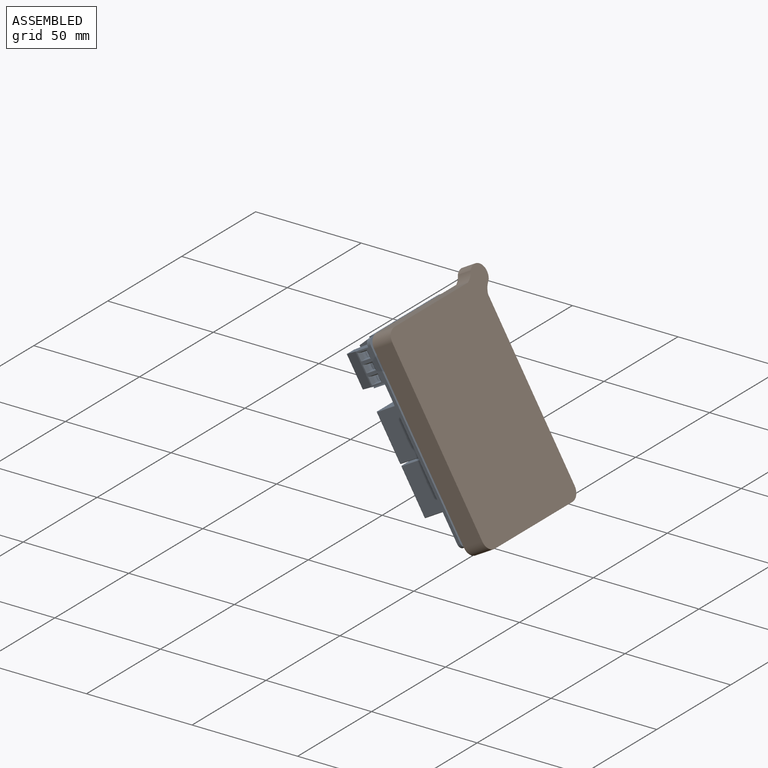
[diagram: assembled view]
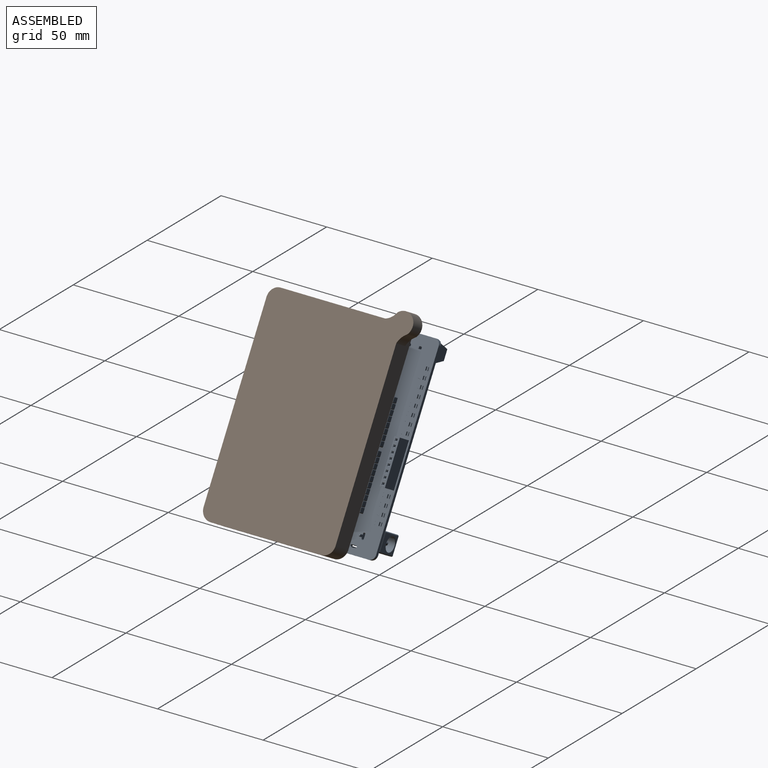
[diagram: assembled view, second angle]
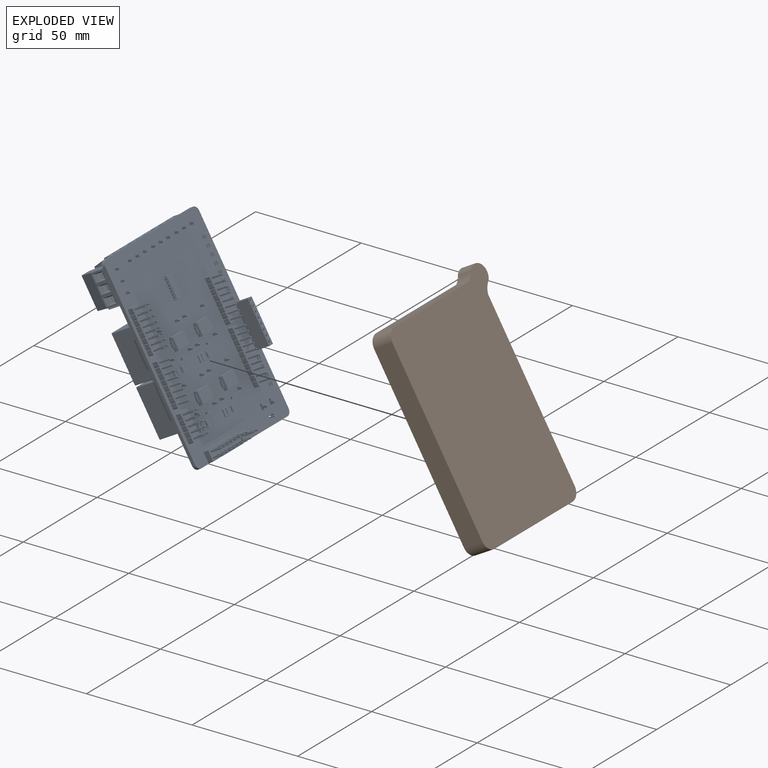
[diagram: exploded view]
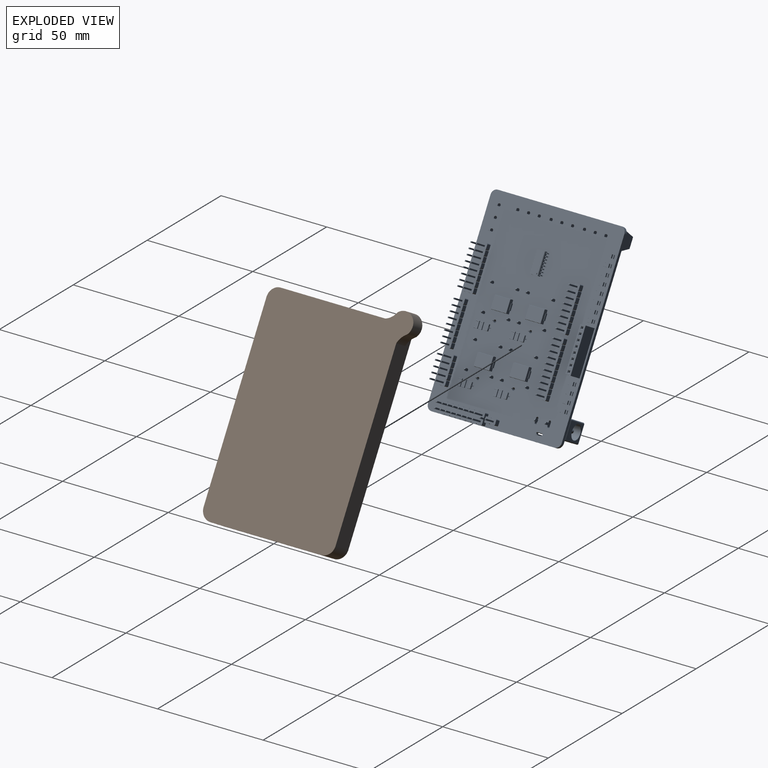
[diagram: exploded view, second angle]
FCSTD DOCUMENT  (FreeCAD 0.20R29410 (Git))
Label: case
License: All rights reserved
LicenseURL: http://en.wikipedia.org/wiki/All_rights_reserved
objects: App::Link×45, Part::Feature×21, Sketcher::SketchObject×12, App::Part×7, PartDesign::ShapeBinder×7, PartDesign::Pad×6, PartDesign::Pocket×5, PartDesign::Fillet×3, PartDesign::Chamfer×2, PartDesign::CoordinateSystem×1, Spreadsheet::Sheet×1, PartDesign::Body×1
note: 74 computed .brp shape members not serialized (recipe doc carries the construction recipe); baked Part::Feature solids carry a one-line shape summary decoded from their .brp
EXTERNAL_REF file=kit.FCStd obj=Body

FEATURE [PartDesign::CoordinateSystem] Local_CS_28d6
  AttacherType = Attacher::AttachEngine3D
  MapMode = 2
  Support = -> [X_Axis001]
FEATURE [Part::Feature] Pcb_28d6
  shape: bbox 89.73 x 63.38 x 1.6 mm, 143 faces (baked)
FEATURE [Sketcher::SketchObject] PCB_Sketch_28d6
  FullyConstrained = false
  sketch-geometry (13):
    g0: LineSegment StartX=103.825 StartY=-70.15 StartZ=0 EndX=103.825 EndY=-66.375 EndZ=0
    g1: LineSegment StartX=190.946 StartY=-63.7749 StartZ=0 EndX=106.45 EndY=-63.7751 EndZ=0
    g2: LineSegment StartX=103.83 StartY=-75.7499 StartZ=0 EndX=103.823 EndY=-124.52 EndZ=0
    g3: LineSegment StartX=106.422 StartY=-127.145 StartZ=0 EndX=190.92 EndY=-127.152 EndZ=0
    g4: LineSegment StartX=193.545 StartY=-66.4001 StartZ=0 EndX=193.55 EndY=-75.775 EndZ=0
    g5: LineSegment StartX=103.83 StartY=-75.7499 StartZ=0 EndX=103.825 EndY=-73.15 EndZ=0
    g6: LineSegment StartX=193.55 StartY=-75.9 StartZ=0 EndX=193.55 EndY=-75.775 EndZ=0
    g7: LineSegment StartX=193.545 StartY=-124.553 StartZ=0 EndX=193.55 EndY=-75.9 EndZ=0
    g8: LineSegment StartX=103.825 StartY=-73.15 StartZ=0 EndX=103.825 EndY=-70.15 EndZ=0
    g9: ArcOfCircle CenterX=106.422 CenterY=-124.545 CenterZ=0 NormalX=0 NormalY=0 NormalZ=-1 AngleXU=-1.5708 Radius=2.6 StartAngle=0 EndAngle=1.5805
    g10: ArcOfCircle CenterX=190.945 CenterY=-124.553 CenterZ=0 NormalX=0 NormalY=0 NormalZ=-1 AngleXU=-3.14159 Radius=2.6 StartAngle=0 EndAngle=1.5805
    g11: ArcOfCircle CenterX=190.946 CenterY=-66.3749 CenterZ=0 NormalX=0 NormalY=0 NormalZ=-1 AngleXU=1.5708 Radius=2.60001 StartAngle=0 EndAngle=1.5805
    g12: ArcOfCircle CenterX=106.425 CenterY=-66.3751 CenterZ=0 NormalX=0 NormalY=0 NormalZ=-1 AngleXU=2.33636e-05 Radius=2.60006 StartAngle=0 EndAngle=1.58046
  constraints (13):
    c: Coincident(g2,g9)
    c: Coincident(g2,g5)
    c: Coincident(g5,g8)
    c: Coincident(g0,g8)
    c: Coincident(g0,g12)
    c: Coincident(g3,g9)
    c: Coincident(g1,g12)
    c: Coincident(g3,g10)
    c: Coincident(g1,g11)
    c: Coincident(g7,g10)
    c: Coincident(g6,g7)
    c: Coincident(g4,g6)
    c: Coincident(g4,g11)
FEATURE [App::Part] Board_Geoms_28d6
  Group = -> [Pcb_28d6,PCB_Sketch_28d6]
  Origin = -> Origin
FEATURE [Part::Feature] Shape  label="J12_PinHeader_1x08_P254mm_Vertical_d783d4724b8c"
  Placement = pos=(130.45,-124.275,-1.7) rot=(0.707107,-0.707107,0;3.14159rad)
  shape: bbox 20.32 x 2.54 x 11.54 mm, 196 faces (baked)
FEATURE [Part::Feature] Shape001  label="K1_Omron Single_caf82bef3e86[2]"
  Placement = pos=(118.575,-116.9,0) rot=(0.57735,-0.57735,-0.57735;2.0944rad)
  shape: bbox 22.7 x 16.9 x 22.5 mm, 178 faces (baked)
FEATURE [Part::Feature] Part__Feature  label="DC Power Jack 5.5mm x 2.1mm"
  shape: bbox 8.98 x 10.66 x 3.434 mm, 26 faces (baked)
FEATURE [Part::Feature] Part__Feature001  label="DC Power Jack 5.5mm x 2.1mm001"
  shape: bbox 7.413 x 9.986 x 5.78 mm, 45 faces (baked)
FEATURE [Part::Feature] Part__Feature002  label="DC Power Jack 5.5mm x 2.1mm002"
  shape: bbox 5.91 x 12.13 x 1.49 mm, 32 faces (baked)
FEATURE [Part::Feature] Part__Feature003  label="DC Power Jack 5.5mm x 2.1mm003"
  shape: bbox 2.706 x 2.706 x 13.23 mm, 24 faces (baked)
FEATURE [Part::Feature] Part__Feature004  label="DC Power Jack 5.5mm x 2.1mm004"
  shape: bbox 8.98 x 10.22 x 9.009 mm, 23 faces (baked)
FEATURE [Part::Feature] Part__Feature005  label="DC Power Jack 5.5mm x 2.1mm005"
  shape: bbox 7.78 x 8.517 x 11.48 mm, 51 faces (baked)
FEATURE [App::Part] DC_Power_Jack_5_5mm_x_2_1mm  label="J1_DC Power Jack 5.5mm x 2.1mm006_e5b2adcd096e[2]"
  Group = -> [Part__Feature,Part__Feature001,Part__Feature002,Part__Feature003,Part__Feature004,Part__Feature005]
  Origin = -> Origin008
  Placement = pos=(111.908,-67.025,6.2) rot=(0,0.707107,0.707107;3.14159rad)
FEATURE [Part::Feature] Shape002  label="R11_R_1206_3216Metric_ec07428b837d"
  Placement = pos=(162.425,-66.8,0) rot=(0,0,1;1.5708rad)
  shape: bbox 1.6 x 3.2 x 0.55 mm, 26 faces (baked)
FEATURE [Part::Feature] Shape003  label="J7_TerminalBlock_Phoenix_MKDS_15_3_508_1x03_P508mm_Horizontal_12463923074c"
  Placement = pos=(188.28,-113.235,0) rot=(0,0,1;1.5708rad)
  shape: bbox 9.8 x 15.98 x 17.3 mm, 125 faces (baked)
FEATURE [Part::Feature] Shape004  label="J10_PinHeader_1x10_P254mm_Vertical_23bf743a7fd1"
  Placement = pos=(121.475,-76.025,-1.7) rot=(0.707107,-0.707107,0;3.14159rad)
  shape: bbox 25.4 x 2.54 x 11.54 mm, 244 faces (baked)
FEATURE [Part::Feature] Shape005  label="J13_PinHeader_2x08_P254mm_Vertical_a01e1bbe7a61"
  Placement = pos=(153.325,-121.8,-1.5) rot=(0.707107,-0.707107,0;3.14159rad)
  shape: bbox 20.32 x 5.08 x 11.54 mm, 340 faces (baked)
FEATURE [App::Link] R11_R_1206_3216Metric_ec07428b837d_ln_  label="R17_R_1206_3216Metric_3580d38782c3"
  LinkPlacement = pos=(169.95,-66.775,0) rot=(0,0,1;1.5708rad)
  LinkedObject = -> Shape002
  Placement = pos=(169.95,-66.775,0) rot=(0,0,1;1.5708rad)
FEATURE [App::Link] R11_R_1206_3216Metric_ec07428b837d_ln_001  label="R2_R_1206_3216Metric_eec3e6a189bc"
  LinkPlacement = pos=(122.025,-66.8,0) rot=(0,0,1;1.5708rad)
  LinkedObject = -> Shape002
  Placement = pos=(122.025,-66.8,0) rot=(0,0,1;1.5708rad)
FEATURE [App::Link] K1_Omron_Single_caf82bef3e86_2__ln_  label="K2_Omron Single_f9110d43add2[2]"
  LinkPlacement = pos=(141.775,-100.025,0) rot=(0.57735,-0.57735,-0.57735;2.0944rad)
  LinkedObject = -> Shape001
  Placement = pos=(141.775,-100.025,0) rot=(0.57735,-0.57735,-0.57735;2.0944rad)
FEATURE [App::Link] J13_PinHeader_2x08_P254mm_Vertical_a01e1bbe7a61_ln_  label="J6_PinHeader_2x08_P254mm_Vertical_eae046cc1161"
  LinkPlacement = pos=(105.35,-118.375,-1.7) rot=(1,0,0;3.14159rad)
  LinkedObject = -> Shape005
  Placement = pos=(105.35,-118.375,-1.7) rot=(1,0,0;3.14159rad)
FEATURE [App::Link] R11_R_1206_3216Metric_ec07428b837d_ln_002  label="R1_R_1206_3216Metric_94f45a4b6795"
  LinkPlacement = pos=(118.3,-66.825,0) rot=(0,0,1;1.5708rad)
  LinkedObject = -> Shape002
  Placement = pos=(118.3,-66.825,0) rot=(0,0,1;1.5708rad)
FEATURE [App::Link] R11_R_1206_3216Metric_ec07428b837d_ln_003  label="R19_R_1206_3216Metric_bf50ff09cd04"
  LinkPlacement = pos=(177.5,-66.65,0) rot=(0,0,1;1.5708rad)
  LinkedObject = -> Shape002
  Placement = pos=(177.5,-66.65,0) rot=(0,0,1;1.5708rad)
FEATURE [App::Link] K1_Omron_Single_caf82bef3e86_2__ln_001  label="K3_Omron Single_8cf321bb68ed[2]"
  LinkPlacement = pos=(141.773,-116.975,0) rot=(0.57735,-0.57735,-0.57735;2.0944rad)
  LinkedObject = -> Shape001
  Placement = pos=(141.773,-116.975,0) rot=(0.57735,-0.57735,-0.57735;2.0944rad)
FEATURE [App::Link] J12_PinHeader_1x08_P254mm_Vertical_d783d4724b8c_ln_  label="J9_PinHeader_1x08_P254mm_Vertical_97c036a740dd"
  LinkPlacement = pos=(148.3,-76.025,-1.7) rot=(0.707107,-0.707107,0;3.14159rad)
  LinkedObject = -> Shape
  Placement = pos=(148.3,-76.025,-1.7) rot=(0.707107,-0.707107,0;3.14159rad)
FEATURE [App::Link] R11_R_1206_3216Metric_ec07428b837d_ln_004  label="R20_R_1206_3216Metric_25bd57ac141b"
  LinkPlacement = pos=(181.275,-66.65,0) rot=(0,0,1;1.5708rad)
  LinkedObject = -> Shape002
  Placement = pos=(181.275,-66.65,0) rot=(0,0,1;1.5708rad)
FEATURE [App::Link] R11_R_1206_3216Metric_ec07428b837d_ln_005  label="R9_R_1206_3216Metric_c1497c8de97c"
  LinkPlacement = pos=(154.925,-66.825,0) rot=(0,0,1;1.5708rad)
  LinkedObject = -> Shape002
  Placement = pos=(154.925,-66.825,0) rot=(0,0,1;1.5708rad)
FEATURE [App::Link] J7_TerminalBlock_Phoenix_MKDS_15_3_508_1x03_P508mm_Horizontal_12463923074c_ln_  label="J3_TerminalBlock_Phoenix_MKDS_15_3_508_1x03_P508mm_Horizontal_1d837a123eba"
  LinkPlacement = pos=(177.84,-122.03,0) rot=(0,0,1;0rad)
  LinkedObject = -> Shape003
  Placement = pos=(177.84,-122.03,0) rot=(0,0,1;0rad)
FEATURE [App::Link] J7_TerminalBlock_Phoenix_MKDS_15_3_508_1x03_P508mm_Horizontal_12463923074c_ln_001  label="J8_TerminalBlock_Phoenix_MKDS_15_3_508_1x03_P508mm_Horizontal_bc24bf0b74e8"
  LinkPlacement = pos=(188.3,-81.675,0) rot=(0,0,1;1.5708rad)
  LinkedObject = -> Shape003
  Placement = pos=(188.3,-81.675,0) rot=(0,0,1;1.5708rad)
FEATURE [App::Link] R11_R_1206_3216Metric_ec07428b837d_ln_006  label="R10_R_1206_3216Metric_6ad1f30e7b3c"
  LinkPlacement = pos=(158.675,-66.8,0) rot=(0,0,1;1.5708rad)
  LinkedObject = -> Shape002
  Placement = pos=(158.675,-66.8,0) rot=(0,0,1;1.5708rad)
FEATURE [App::Link] R11_R_1206_3216Metric_ec07428b837d_ln_007  label="R7_R_1206_3216Metric_1bdf9946985d"
  LinkPlacement = pos=(125.775,-66.825,0) rot=(0,0,1;1.5708rad)
  LinkedObject = -> Shape002
  Placement = pos=(125.775,-66.825,0) rot=(0,0,1;1.5708rad)
FEATURE [Part::Feature] Shape006  label="J2_PinHeader_1x02_P254mm_Vertical_95efb781d8af"
  Placement = pos=(106.71,-94.9,-1.7) rot=(0,1,0;3.14159rad)
  shape: bbox 2.54 x 5.08 x 11.54 mm, 52 faces (baked)
FEATURE [App::Link] J7_TerminalBlock_Phoenix_MKDS_15_3_508_1x03_P508mm_Horizontal_12463923074c_ln_002  label="J4_TerminalBlock_Phoenix_MKDS_15_3_508_1x03_P508mm_Horizontal_16a0b4103535"
  LinkPlacement = pos=(188.3,-97.475,0) rot=(0,0,1;1.5708rad)
  LinkedObject = -> Shape003
  Placement = pos=(188.3,-97.475,0) rot=(0,0,1;1.5708rad)
FEATURE [App::Link] R11_R_1206_3216Metric_ec07428b837d_ln_008  label="R8_R_1206_3216Metric_538cd9ca3b60"
  LinkPlacement = pos=(129.525,-66.825,0) rot=(0,0,1;1.5708rad)
  LinkedObject = -> Shape002
  Placement = pos=(129.525,-66.825,0) rot=(0,0,1;1.5708rad)
FEATURE [Part::Feature] Shape007  label="J5_PinHeader_2x05_P254mm_Vertical_f005d03266e4"
  Placement = pos=(115.775,-121.75,-1.7) rot=(0.707107,-0.707107,0;3.14159rad)
  shape: bbox 12.7 x 5.08 x 11.54 mm, 214 faces (baked)
FEATURE [App::Link] R11_R_1206_3216Metric_ec07428b837d_ln_009  label="R14_R_1206_3216Metric_2640cb732bdd"
  LinkPlacement = pos=(166.175,-66.8,0) rot=(0,0,1;1.5708rad)
  LinkedObject = -> Shape002
  Placement = pos=(166.175,-66.8,0) rot=(0,0,1;1.5708rad)
FEATURE [App::Link] R11_R_1206_3216Metric_ec07428b837d_ln_010  label="R18_R_1206_3216Metric_64d4fbef29ad"
  LinkPlacement = pos=(173.725,-66.725,0) rot=(0,0,1;1.5708rad)
  LinkedObject = -> Shape002
  Placement = pos=(173.725,-66.725,0) rot=(0,0,1;1.5708rad)
FEATURE [App::Link] K1_Omron_Single_caf82bef3e86_2__ln_002  label="K4_Omron Single_2e16ef0eddcc[2]"
  LinkPlacement = pos=(118.573,-100,0) rot=(0.57735,-0.57735,-0.57735;2.0944rad)
  LinkedObject = -> Shape001
  Placement = pos=(118.573,-100,0) rot=(0.57735,-0.57735,-0.57735;2.0944rad)
FEATURE [App::Part] Top_28d6
  Group = -> [Shape,Shape001,DC_Power_Jack_5_5mm_x_2_1mm,Shape002,Shape003,Shape004,Shape005,R11_R_1206_3216Metric_ec07428b837d_ln_,R11_R_1206_3216Metric_ec07428b837d_ln_001,K1_Omron_Single_caf82bef3e86_2__ln_,J13_PinHeader_2x08_P254mm_Vertical_a01e1bbe7a61_ln_,R11_R_1206_3216Metric_ec07428b837d_ln_002,R11_R_1206_3216Metric_ec07428b837d_ln_003,K1_Omron_Single_caf82bef3e86_2__ln_001,+14 more]
  Origin = -> Origin003
FEATURE [Part::Feature] Shape008  label="D4_D_SMC_c487d827e4b3"
  Placement = pos=(151.3,-90.875,-1.6) rot=(0.707107,-0.707107,0;3.14159rad)
  shape: bbox 5.9 x 8 x 2.31 mm, 41 faces (baked)
FEATURE [Part::Feature] Shape009  label="D1_LED_1206_3216Metric_d844c38b822c"
  Placement = pos=(118.3,-66.8125,-1.6) rot=(0.707107,-0.707107,0;3.14159rad)
  shape: bbox 1.6 x 3.2 x 1.1 mm, 50 faces (baked)
FEATURE [Part::Feature] Shape010  label="Q1_TSOT_23_ddb4d86defde"
  Placement = pos=(117.75,-110.94,-1.6) rot=(0.707107,0.707107,0;3.14159rad)
  shape: bbox 2.9 x 2.8 x 0.95 mm, 79 faces (baked)
FEATURE [App::Link] R11_R_1206_3216Metric_ec07428b837d_ln_011  label="R13_R_1206_3216Metric_a5290e0958aa"
  LinkPlacement = pos=(117.825,-98.9511,-1.6) rot=(0,1,0;3.14159rad)
  LinkedObject = -> Shape002
  Placement = pos=(117.825,-98.9511,-1.6) rot=(0,1,0;3.14159rad)
FEATURE [Part::Feature] Shape011  label="J11_PinSocket_1x08_P254mm_Vertical_2b9474b2f036"
  Placement = pos=(133.575,-65.725,-1.6) rot=(0.707107,-0.707107,0;3.14159rad)
  shape: bbox 20.32 x 2.54 x 10.1 mm, 258 faces (baked)
FEATURE [App::Link] D1_LED_1206_3216Metric_d844c38b822c_ln_  label="D7_LED_1206_3216Metric_13a76bbdf113"
  LinkPlacement = pos=(154.925,-66.8,-1.6) rot=(0.707107,-0.707107,0;3.14159rad)
  LinkedObject = -> Shape009
  Placement = pos=(154.925,-66.8,-1.6) rot=(0.707107,-0.707107,0;3.14159rad)
FEATURE [App::Link] R11_R_1206_3216Metric_ec07428b837d_ln_012  label="R12_R_1206_3216Metric_bc84a44e62c0"
  LinkPlacement = pos=(141.188,-115.978,-1.6) rot=(0,1,0;3.14159rad)
  LinkedObject = -> Shape002
  Placement = pos=(141.188,-115.978,-1.6) rot=(0,1,0;3.14159rad)
FEATURE [App::Link] Q1_TSOT_23_ddb4d86defde_ln_  label="Q2_TSOT_23_6eccafcf6a0f"
  LinkPlacement = pos=(140.95,-94.015,-1.6) rot=(0.707107,0.707107,0;3.14159rad)
  LinkedObject = -> Shape010
  Placement = pos=(140.95,-94.015,-1.6) rot=(0.707107,0.707107,0;3.14159rad)
FEATURE [Part::Feature] Part__Feature006  label="User_Library-so16-1"
  shape: bbox 9.29 x 1.038 x 6.137 mm, 206 faces (baked)
FEATURE [Part::Feature] Part__Feature007  label="User_Library-so16-002"
  shape: bbox 9.97 x 1.6 x 4 mm, 12 faces (baked)
FEATURE [App::Part] User_Library_so16_1  label="U1_User_Library-so16-003_2794b44e3a7c[2]"
  Group = -> [Part__Feature006,Part__Feature007]
  Origin = -> Origin009
  Placement = pos=(170.8,-96.775,-2.4) rot=(-1,0,0;1.5708rad)
FEATURE [App::Link] D1_LED_1206_3216Metric_d844c38b822c_ln_001  label="D6_LED_1206_3216Metric_14b0f569b74b"
  LinkPlacement = pos=(129.525,-66.825,-1.6) rot=(0.707107,-0.707107,0;3.14159rad)
  LinkedObject = -> Shape009
  Placement = pos=(129.525,-66.825,-1.6) rot=(0.707107,-0.707107,0;3.14159rad)
FEATURE [App::Link] D1_LED_1206_3216Metric_d844c38b822c_ln_002  label="D2_LED_1206_3216Metric_856cc0d17812"
  LinkPlacement = pos=(122.025,-66.8,-1.6) rot=(0.707107,-0.707107,0;3.14159rad)
  LinkedObject = -> Shape009
  Placement = pos=(122.025,-66.8,-1.6) rot=(0.707107,-0.707107,0;3.14159rad)
FEATURE [App::Link] D1_LED_1206_3216Metric_d844c38b822c_ln_003  label="D9_LED_1206_3216Metric_afd7fb6486c7"
  LinkPlacement = pos=(162.425,-66.8125,-1.6) rot=(0.707107,-0.707107,0;3.14159rad)
  LinkedObject = -> Shape009
  Placement = pos=(162.425,-66.8125,-1.6) rot=(0.707107,-0.707107,0;3.14159rad)
FEATURE [App::Link] D1_LED_1206_3216Metric_d844c38b822c_ln_004  label="D16_LED_1206_3216Metric_99e1aaf2db81"
  LinkPlacement = pos=(181.275,-66.725,-1.6) rot=(0.707107,-0.707107,0;3.14159rad)
  LinkedObject = -> Shape009
  Placement = pos=(181.275,-66.725,-1.6) rot=(0.707107,-0.707107,0;3.14159rad)
FEATURE [App::Link] D1_LED_1206_3216Metric_d844c38b822c_ln_005  label="D5_LED_1206_3216Metric_92fa0a208bc0"
  LinkPlacement = pos=(125.775,-66.825,-1.6) rot=(0.707107,-0.707107,0;3.14159rad)
  LinkedObject = -> Shape009
  Placement = pos=(125.775,-66.825,-1.6) rot=(0.707107,-0.707107,0;3.14159rad)
FEATURE [App::Link] D4_D_SMC_c487d827e4b3_ln_  label="D12_D_SMC_5885b468f99e"
  LinkPlacement = pos=(128.125,-90.225,-1.6) rot=(0.707107,-0.707107,0;3.14159rad)
  LinkedObject = -> Shape008
  Placement = pos=(128.125,-90.225,-1.6) rot=(0.707107,-0.707107,0;3.14159rad)
FEATURE [App::Link] R11_R_1206_3216Metric_ec07428b837d_ln_013  label="R6_R_1206_3216Metric_3901a406f828"
  LinkPlacement = pos=(141,-97.05,-1.6) rot=(0,1,0;3.14159rad)
  LinkedObject = -> Shape002
  Placement = pos=(141,-97.05,-1.6) rot=(0,1,0;3.14159rad)
FEATURE [App::Link] Q1_TSOT_23_ddb4d86defde_ln_001  label="Q3_TSOT_23_b325ceec8bab"
  LinkPlacement = pos=(141.162,-110.99,-1.6) rot=(0.707107,0.707107,0;3.14159rad)
  LinkedObject = -> Shape010
  Placement = pos=(141.162,-110.99,-1.6) rot=(0.707107,0.707107,0;3.14159rad)
FEATURE [App::Link] R11_R_1206_3216Metric_ec07428b837d_ln_014  label="R16_R_1206_3216Metric_e77d0877625f"
  LinkPlacement = pos=(117.825,-96.9511,-1.6) rot=(0,1,0;3.14159rad)
  LinkedObject = -> Shape002
  Placement = pos=(117.825,-96.9511,-1.6) rot=(0,1,0;3.14159rad)
FEATURE [App::Link] R11_R_1206_3216Metric_ec07428b837d_ln_015  label="R3_R_1206_3216Metric_69428996f940"
  LinkPlacement = pos=(117.775,-115.925,-1.6) rot=(0,1,0;3.14159rad)
  LinkedObject = -> Shape002
  Placement = pos=(117.775,-115.925,-1.6) rot=(0,1,0;3.14159rad)
FEATURE [App::Link] R11_R_1206_3216Metric_ec07428b837d_ln_016  label="R15_R_1206_3216Metric_1a15edaaa99e"
  LinkPlacement = pos=(141.188,-114.002,-1.6) rot=(0,1,0;3.14159rad)
  LinkedObject = -> Shape002
  Placement = pos=(141.188,-114.002,-1.6) rot=(0,1,0;3.14159rad)
FEATURE [App::Link] D1_LED_1206_3216Metric_d844c38b822c_ln_006  label="D15_LED_1206_3216Metric_d279e461859d"
  LinkPlacement = pos=(177.5,-66.725,-1.6) rot=(0.707107,-0.707107,0;3.14159rad)
  LinkedObject = -> Shape009
  Placement = pos=(177.5,-66.725,-1.6) rot=(0.707107,-0.707107,0;3.14159rad)
FEATURE [App::Link] R11_R_1206_3216Metric_ec07428b837d_ln_017  label="R5_R_1206_3216Metric_d9ad3b71938c"
  LinkPlacement = pos=(117.775,-113.95,-1.6) rot=(0,1,0;3.14159rad)
  LinkedObject = -> Shape002
  Placement = pos=(117.775,-113.95,-1.6) rot=(0,1,0;3.14159rad)
FEATURE [App::Link] D4_D_SMC_c487d827e4b3_ln_001  label="D3_D_SMC_52a983bba8a5"
  LinkPlacement = pos=(128.125,-107.1,-1.6) rot=(0.707107,-0.707107,0;3.14159rad)
  LinkedObject = -> Shape008
  Placement = pos=(128.125,-107.1,-1.6) rot=(0.707107,-0.707107,0;3.14159rad)
FEATURE [App::Link] D4_D_SMC_c487d827e4b3_ln_002  label="D11_D_SMC_b763dbb2c189"
  LinkPlacement = pos=(151.275,-107.15,-1.6) rot=(0.707107,-0.707107,0;3.14159rad)
  LinkedObject = -> Shape008
  Placement = pos=(151.275,-107.15,-1.6) rot=(0.707107,-0.707107,0;3.14159rad)
FEATURE [App::Link] Q1_TSOT_23_ddb4d86defde_ln_002  label="Q4_TSOT_23_8e9fd2a21814"
  LinkPlacement = pos=(117.8,-93.915,-1.6) rot=(0.707107,0.707107,0;3.14159rad)
  LinkedObject = -> Shape010
  Placement = pos=(117.8,-93.915,-1.6) rot=(0.707107,0.707107,0;3.14159rad)
FEATURE [App::Link] D1_LED_1206_3216Metric_d844c38b822c_ln_007  label="D14_LED_1206_3216Metric_8a680b210207"
  LinkPlacement = pos=(173.725,-66.7375,-1.6) rot=(0.707107,-0.707107,0;3.14159rad)
  LinkedObject = -> Shape009
  Placement = pos=(173.725,-66.7375,-1.6) rot=(0.707107,-0.707107,0;3.14159rad)
FEATURE [App::Link] R11_R_1206_3216Metric_ec07428b837d_ln_018  label="R4_R_1206_3216Metric_f42b3a977533"
  LinkPlacement = pos=(141,-99.025,-1.6) rot=(0,1,0;3.14159rad)
  LinkedObject = -> Shape002
  Placement = pos=(141,-99.025,-1.6) rot=(0,1,0;3.14159rad)
FEATURE [App::Link] D1_LED_1206_3216Metric_d844c38b822c_ln_008  label="D10_LED_1206_3216Metric_af69e3cb1205"
  LinkPlacement = pos=(166.175,-66.8,-1.6) rot=(0.707107,-0.707107,0;3.14159rad)
  LinkedObject = -> Shape009
  Placement = pos=(166.175,-66.8,-1.6) rot=(0.707107,-0.707107,0;3.14159rad)
FEATURE [App::Link] D1_LED_1206_3216Metric_d844c38b822c_ln_009  label="D13_LED_1206_3216Metric_e245f4d41cac"
  LinkPlacement = pos=(169.95,-66.775,-1.6) rot=(0.707107,-0.707107,0;3.14159rad)
  LinkedObject = -> Shape009
  Placement = pos=(169.95,-66.775,-1.6) rot=(0.707107,-0.707107,0;3.14159rad)
FEATURE [App::Link] D1_LED_1206_3216Metric_d844c38b822c_ln_010  label="D8_LED_1206_3216Metric_986811c10a79"
  LinkPlacement = pos=(158.675,-66.8,-1.6) rot=(0.707107,-0.707107,0;3.14159rad)
  LinkedObject = -> Shape009
  Placement = pos=(158.675,-66.8,-1.6) rot=(0.707107,-0.707107,0;3.14159rad)
FEATURE [App::Part] Bot_28d6
  Group = -> [Shape008,Shape009,Shape010,R11_R_1206_3216Metric_ec07428b837d_ln_011,Shape011,D1_LED_1206_3216Metric_d844c38b822c_ln_,R11_R_1206_3216Metric_ec07428b837d_ln_012,Q1_TSOT_23_ddb4d86defde_ln_,User_Library_so16_1,D1_LED_1206_3216Metric_d844c38b822c_ln_001,D1_LED_1206_3216Metric_d844c38b822c_ln_002,D1_LED_1206_3216Metric_d844c38b822c_ln_003,D1_LED_1206_3216Metric_d844c38b822c_ln_004,+17 more]
  Origin = -> Origin004
FEATURE [App::Part] Step_Models_28d6
  Group = -> [Top_28d6,Bot_28d6]
  Origin = -> Origin002
FEATURE [App::Part] Board_28d6  label="shield"
  Group = -> [Local_CS_28d6,Board_Geoms_28d6,Step_Models_28d6]
  Origin = -> Origin001
  Placement = pos=(0,61,0) rot=(0,1,0;4.18879rad)
FEATURE [Spreadsheet::Sheet] Spreadsheet  label="params"
  cells = A1=ref_board_wall_thickness; B1(wall_thickness)=1.9; A2=ref_board_width; B2(ref_board_width)=62.1; A3=ref_pcb_width; B3(ref_pcb_width)=54; A4=ref_board_height; B4(ref_board_height)=95
FEATURE [PartDesign::ShapeBinder] ShapeBinder
  Placement = pos=(0,61,0) rot=(0,1,0;4.18879rad)
  Support = -> [Pcb_28d6]
  TraceSupport = true
FEATURE [Sketcher::SketchObject] Sketch
  ExternalGeometry = -> [ShapeBinder]
  FullyConstrained = false
  MapMode = 5
  Placement = pos=(0,0,0) rot=(1,0,0;1.5708rad)
  Support = -> [XZ_Plane010]
  expr: Constraints[12] = <<params>>.wall_thickness
  sketch-geometry (15):
    g0: LineSegment StartX=-94.0745 StartY=166.142 StartZ=0 EndX=-96.0745 EndY=169.606 EndZ=0
    g1: LineSegment StartX=-99.1958 StartY=143.012 StartZ=0 EndX=-110.196 EndY=136.661 EndZ=0
    g2: LineSegment StartX=-110.196 StartY=136.661 StartZ=0 EndX=-110.196 EndY=81.6613 EndZ=0
    g3: LineSegment StartX=-110.196 StartY=81.6613 StartZ=0 EndX=-45.2996 EndY=81.6613 EndZ=0
    g4: LineSegment StartX=-51.8255 StartY=92.9645 StartZ=0 EndX=-40.0205 EndY=72.5176 EndZ=0
    g5: LineSegment StartX=-95.3894 StartY=168.419 StartZ=0 EndX=-96.3394 EndY=170.065 EndZ=0
    g6: LineSegment StartX=-96.0745 StartY=169.606 StartZ=0 EndX=-96.3394 EndY=170.065 EndZ=0
    g7: LineSegment StartX=-96.3394 StartY=170.065 StartZ=0 EndX=-110.196 EndY=162.065 EndZ=0
    g8: LineSegment StartX=-110.196 StartY=162.065 StartZ=0 EndX=-110.196 EndY=70.3447 EndZ=0
    g9: LineSegment StartX=-110.196 StartY=162.065 StartZ=0 EndX=-99.1958 EndY=143.012 EndZ=0
    g10: LineSegment StartX=-96.3394 StartY=170.065 StartZ=0 EndX=-90.2772 EndY=173.565 EndZ=0
    g11: LineSegment StartX=-90.2772 StartY=173.565 StartZ=0 EndX=-35.2772 EndY=78.3019 EndZ=0
    g12: LineSegment StartX=-45.2996 StartY=81.6613 StartZ=0 EndX=-37.2167 EndY=81.6613 EndZ=0
    g13: LineSegment StartX=-37.2167 StartY=81.6613 StartZ=0 EndX=-90.2772 EndY=173.565 EndZ=0
    g14: LineSegment StartX=-96.3394 StartY=170.065 StartZ=0 EndX=-90.2772 EndY=173.565 EndZ=0
  constraints (41):
    c: Coincident(g0,g-3)
    c: Parallel(g-3,g0)
    c: Distance(g0) = 4
    c: Coincident(g2,g1)
    c: Coincident(g3,g2)
    c: Horizontal(g3)
    c: Coincident(g4,g-3)
    c: Parallel(g-3,g4)
    c: Distance(g4) = 23.61
    c: PointOnObject(g3,g4)
    c: Coincident(g5,g-4)
    c: Parallel(g-3,g5)
    c: Distance(g5) = 1.9
    c: Coincident(g6,g5)
    c: Coincident(g7,g5)
    c: Perpendicular(g7,g5)
    c: Distance(g7) = 16
    c: Coincident(g8,g7)
    c: Vertical(g8)
    c: Distance(g8) = 91.72
    c: Coincident(g9,g7)
    c: Coincident(g9,g1)
    c: Perpendicular(g9,g7)
    c: Distance(g9) = 22
    c: Perpendicular(g1,g9)
    c: PointOnObject(g1,g8)
    c: PointOnObject(g2,g8)
    c: Distance(g2) = 55
    c: Coincident(g10,g7)
    c: Distance(g10) = 7
    c: Perpendicular(g0,g10)
    c: Coincident(g11,g10)
    c: Parallel(g11,g4)
    c: Distance(g11) = 110
    c: Coincident(g12,g3)
    c: PointOnObject(g12,g11)
    c: Horizontal(g12)
    c: Coincident(g13,g12)
    c: Coincident(g13,g10)
    c: Coincident(g14,g7)
    c: Coincident(g14,g13)
FEATURE [PartDesign::Pad] Pad
  Direction = (0,-1,-2e-16)
  Length = 2
  Length2 = 10
  Placement = pos=(0,0,0) rot=(1,0,0;1.5708rad)
  Profile = -> Sketch
  ReferenceAxis = -> Sketch [N_Axis]
  Type = 0
FEATURE [App::Link] Link  label="Body"
  LinkPlacement = pos=(-89.8307,-73.5,173.592) rot=(0.447214,0.447214,0.774597;1.82348rad)
  LinkedObject = -> <external kit.FCStd>#Body
  Placement = pos=(-89.8307,-73.5,173.592) rot=(0.447214,0.447214,0.774597;1.82348rad)
FEATURE [Sketcher::SketchObject] Sketch001
  ExternalGeometry = -> [Pad]
  FullyConstrained = true
  MapMode = 5
  Placement = pos=(0,-2,0) rot=(1,0,0;1.5708rad)
  Support = -> [Pad]
  sketch-geometry (33):
    g0: LineSegment StartX=-90.2772 StartY=173.565 StartZ=0 EndX=-110.196 EndY=162.065 EndZ=0
    g1: LineSegment StartX=-110.196 StartY=162.065 StartZ=0 EndX=-99.1958 EndY=143.012 EndZ=0
    g2: LineSegment StartX=-99.1958 StartY=143.012 StartZ=0 EndX=-110.196 EndY=136.661 EndZ=0
    g3: LineSegment StartX=-110.196 StartY=136.661 StartZ=0 EndX=-110.196 EndY=81.6613 EndZ=0
    g4: LineSegment StartX=-110.196 StartY=81.6613 StartZ=0 EndX=-37.2167 EndY=81.6613 EndZ=0
    g5: LineSegment StartX=-37.2167 StartY=81.6613 StartZ=0 EndX=-42.7167 EndY=91.1875 EndZ=0
    g6: LineSegment StartX=-90.2772 StartY=173.565 StartZ=0 EndX=-89.7772 EndY=172.699 EndZ=0
    g7: LineSegment StartX=-110.196 StartY=162.065 StartZ=0 EndX=-109.696 EndY=161.199 EndZ=0
    g8: LineSegment StartX=-109.696 StartY=161.199 StartZ=0 EndX=-108.83 EndY=161.699 EndZ=0
    g9: LineSegment StartX=-89.7772 StartY=172.699 StartZ=0 EndX=-108.83 EndY=161.699 EndZ=0
    g10: LineSegment StartX=-99.1958 StartY=143.012 StartZ=0 EndX=-98.3297 EndY=143.512 EndZ=0
    g11: LineSegment StartX=-98.3297 StartY=143.512 StartZ=0 EndX=-97.8297 EndY=142.646 EndZ=0
    g12: LineSegment StartX=-97.8297 StartY=142.646 StartZ=0 EndX=-108.83 EndY=161.699 EndZ=0
    g13: LineSegment StartX=-110.196 StartY=136.661 StartZ=0 EndX=-109.33 EndY=137.161 EndZ=0
    g14: LineSegment StartX=-109.33 StartY=137.161 StartZ=0 EndX=-108.83 EndY=136.295 EndZ=0
    g15: LineSegment StartX=-110.196 StartY=136.661 StartZ=0 EndX=-110.196 EndY=135.661 EndZ=0
    g16: LineSegment StartX=-110.196 StartY=135.661 StartZ=0 EndX=-109.196 EndY=135.661 EndZ=0
    g17: LineSegment StartX=-109.196 StartY=135.661 StartZ=0 EndX=-108.83 EndY=136.295 EndZ=0
    g18: LineSegment StartX=-108.83 StartY=136.295 StartZ=0 EndX=-97.8297 EndY=142.646 EndZ=0
    g19: LineSegment StartX=-110.196 StartY=81.6613 StartZ=0 EndX=-110.196 EndY=82.6613 EndZ=0
    g20: LineSegment StartX=-110.196 StartY=82.6613 StartZ=0 EndX=-109.196 EndY=82.6613 EndZ=0
    g21: LineSegment StartX=-37.2167 StartY=81.6613 StartZ=0 EndX=-38.2167 EndY=81.6613 EndZ=0
    g22: LineSegment StartX=-38.2167 StartY=81.6613 StartZ=0 EndX=-38.2167 EndY=82.6613 EndZ=0
    g23: LineSegment StartX=-37.2167 StartY=81.6613 StartZ=0 EndX=-37.7167 EndY=82.5273 EndZ=0
    g24: LineSegment StartX=-37.7167 StartY=82.5273 StartZ=0 EndX=-38.5827 EndY=82.0273 EndZ=0
    g25: LineSegment StartX=-38.2167 StartY=82.6613 StartZ=0 EndX=-37.8997 EndY=82.8443 EndZ=0
    g26: LineSegment StartX=-38.5827 StartY=82.0273 StartZ=0 EndX=-39.4027 EndY=83.4476 EndZ=0
    g27: LineSegment StartX=-38.2167 StartY=82.6613 StartZ=0 EndX=-38.9488 EndY=82.6613 EndZ=0
    g28: LineSegment StartX=-38.9488 StartY=82.6613 StartZ=0 EndX=-109.196 EndY=82.6613 EndZ=0
    g29: LineSegment StartX=-109.196 StartY=82.6613 StartZ=0 EndX=-109.196 EndY=135.661 EndZ=0
    g30: LineSegment StartX=-42.7167 StartY=91.1875 StartZ=0 EndX=-43.5827 EndY=90.6875 EndZ=0
    g31: LineSegment StartX=-43.5827 StartY=90.6875 StartZ=0 EndX=-42.7167 EndY=91.1875 EndZ=0
    g32: LineSegment StartX=-43.5827 StartY=90.6875 StartZ=0 EndX=-38.9488 EndY=82.6613 EndZ=0
  constraints (86):
    c: Coincident(g0,g-5)
    c: Coincident(g0,g-6)
    c: Coincident(g1,g0)
    c: Coincident(g1,g-10)
    c: Coincident(g2,g1)
    c: Coincident(g2,g-10)
    c: Coincident(g3,g2)
    c: Coincident(g3,g-9)
    c: Coincident(g4,g3)
    c: Coincident(g4,g-7)
    c: Coincident(g5,g4)
    c: PointOnObject(g5,g-5)
    c: Distance(g5) = 11
    c: Coincident(g6,g0)
    c: PointOnObject(g6,g-5)
    c: Distance(g6) = 1
    c: Coincident(g7,g0)
    c: Distance(g7) = 1
    c: Parallel(g1,g7)
    c: Coincident(g8,g7)
    c: Distance(g8) = 1
    c: Perpendicular(g8,g1)
    c: Coincident(g9,g6)
    c: Coincident(g9,g8)
    c: Coincident(g10,g1)
    c: Distance(g10) = 1
    c: Parallel(g10,g2)
    c: Coincident(g11,g10)
    c: Distance(g11) = 1
    c: Perpendicular(g10,g11)
    c: Coincident(g12,g11)
    c: Coincident(g12,g9)
    c: Coincident(g13,g2)
    c: Coincident(g14,g13)
    c: Distance(g14) = 1
    c: Distance(g13) = 1
    c: Parallel(g13,g2)
    c: Perpendicular(g2,g14)
    c: Coincident(g15,g2)
    c: Coincident(g16,g15)
    c: Distance(g16) = 1
    c: Distance(g15) = 1
    c: Perpendicular(g3,g16)
    c: Parallel(g15,g3)
    c: Coincident(g17,g16)
    c: Coincident(g17,g14)
    c: Coincident(g18,g17)
    c: Coincident(g18,g12)
    c: Coincident(g19,g3)
    c: Coincident(g20,g19)
    c: Distance(g19) = 1
    c: Distance(g20) = 1
    c: Perpendicular(g3,g20)
    c: Parallel(g19,g3)
    c: Coincident(g21,g4)
    c: Coincident(g22,g21)
    c: Distance(g22) = 1
    c: Distance(g21) = 1
    c: Parallel(g21,g4)
    c: Perpendicular(g4,g22)
    c: Coincident(g23,g4)
    c: Coincident(g24,g23)
    c: Distance(g24) = 1
    c: Distance(g23) = 1
    c: Parallel(g23,g5)
    c: Perpendicular(g5,g24)
    c: Coincident(g25,g22)
    c: PointOnObject(g25,g5)
    c: Parallel(g25,g24)
    c: Coincident(g26,g24)
    c: Coincident(g27,g22)
    c: Perpendicular(g26,g24)
    c: Perpendicular(g27,g22)
    c: PointOnObject(g27,g26)
    c: Distance(g26) = 1.64
    c: Coincident(g28,g27)
    c: Coincident(g28,g20)
    c: Coincident(g29,g28)
    c: Coincident(g29,g17)
    c: Coincident(g30,g5)
    c: Distance(g30) = 1
    c: Perpendicular(g30,g5)
    c: Coincident(g31,g30)
    c: Coincident(g31,g5)
    c: Coincident(g32,g31)
    c: Coincident(g32,g28)
FEATURE [PartDesign::Pad] Pad001
  BaseFeature = -> Pad
  Direction = (0,-1,2e-16)
  Length = 72
  Length2 = 10
  Placement = pos=(0,0,0) rot=(1,0,0;1.5708rad)
  Profile = -> Sketch001
  ReferenceAxis = -> Sketch001 [N_Axis]
  Type = 0
FEATURE [Sketcher::SketchObject] Sketch002
  ExternalGeometry = -> [Pad001]
  FullyConstrained = true
  MapMode = 5
  Placement = pos=(0,-74,3.27e-14) rot=(1,0,0;1.5708rad)
  Support = -> [Pad001]
  sketch-geometry (6):
    g0: LineSegment StartX=-110.196 StartY=81.6613 StartZ=0 EndX=-37.2167 EndY=81.6613 EndZ=0
    g1: LineSegment StartX=-110.196 StartY=81.6613 StartZ=0 EndX=-110.196 EndY=136.661 EndZ=0
    g2: LineSegment StartX=-110.196 StartY=136.661 StartZ=0 EndX=-99.1958 EndY=143.012 EndZ=0
    g3: LineSegment StartX=-99.1958 StartY=143.012 StartZ=0 EndX=-110.196 EndY=162.065 EndZ=0
    g4: LineSegment StartX=-110.196 StartY=162.065 StartZ=0 EndX=-90.2772 EndY=173.565 EndZ=0
    g5: LineSegment StartX=-90.2772 StartY=173.565 StartZ=0 EndX=-37.2167 EndY=81.6613 EndZ=0
  constraints (12):
    c: Coincident(g0,g-6)
    c: Coincident(g0,g-7)
    c: Coincident(g1,g0)
    c: Coincident(g1,g-6)
    c: Coincident(g2,g1)
    c: Coincident(g2,g-5)
    c: Coincident(g3,g2)
    c: Coincident(g3,g-5)
    c: Coincident(g4,g3)
    c: Coincident(g4,g-4)
    c: Coincident(g5,g4)
    c: Coincident(g5,g0)
FEATURE [PartDesign::Pad] Pad002
  BaseFeature = -> Pad001
  Direction = (0,-1,2e-16)
  Length = 2
  Length2 = 10
  Placement = pos=(0,0,0) rot=(1,0,0;1.5708rad)
  Profile = -> Sketch002
  ReferenceAxis = -> Sketch002 [N_Axis]
  Reversed = true
  Type = 0
FEATURE [PartDesign::Fillet] Fillet
  Base = -> Pad002 [Edge48]
  BaseFeature = -> Pad002
  Placement = pos=(0,0,0) rot=(1,0,0;1.5708rad)
  Radius = 10
  SupportTransform = false
  UseAllEdges = false
FEATURE [PartDesign::Fillet] Fillet001
  Base = -> Fillet [Edge30]
  BaseFeature = -> Fillet
  Placement = pos=(0,0,0) rot=(1,0,0;1.5708rad)
  Radius = 5
  SupportTransform = false
  UseAllEdges = false
FEATURE [PartDesign::Fillet] Fillet002
  Base = -> Fillet001 [Edge40]
  BaseFeature = -> Fillet001
  Placement = pos=(0,0,0) rot=(1,0,0;1.5708rad)
  Radius = 3
  SupportTransform = false
  UseAllEdges = false
FEATURE [PartDesign::ShapeBinder] ShapeBinder001
  Placement = pos=(0,61,0) rot=(0,-1,0;2.0944rad)
  Support = -> [Pcb_28d6]
  TraceSupport = true
FEATURE [PartDesign::ShapeBinder] ShapeBinder002
  Placement = pos=(0,61,0) rot=(0,-1,0;2.0944rad)
  Support = -> [Pcb_28d6]
  TraceSupport = true
FEATURE [Sketcher::SketchObject] Sketch003
  ExternalGeometry = -> [ShapeBinder002]
  FullyConstrained = true
  MapMode = 5
  Placement = pos=(0,-2,0) rot=(1,0,0;1.5708rad)
  Support = -> [Fillet002]
  sketch-geometry (4):
    g0: LineSegment StartX=-75.9275 StartY=131.51 StartZ=0 EndX=-66.5375 EndY=115.246 EndZ=0
    g1: LineSegment StartX=-75.9275 StartY=131.51 StartZ=0 EndX=-78.5256 EndY=130.01 EndZ=0
    g2: LineSegment StartX=-78.5256 StartY=130.01 StartZ=0 EndX=-69.1356 EndY=113.746 EndZ=0
    g3: LineSegment StartX=-69.1356 StartY=113.746 StartZ=0 EndX=-66.5375 EndY=115.246 EndZ=0
  constraints (10):
    c: Coincident(g0,g-3)
    c: Coincident(g0,g-4)
    c: Coincident(g1,g0)
    c: Coincident(g2,g1)
    c: Coincident(g3,g2)
    c: Coincident(g3,g0)
    c: Equal(g1,g3)
    c: Perpendicular(g0,g1)
    c: Perpendicular(g2,g1)
    c: Distance(g3) = 3
FEATURE [PartDesign::Pad] Pad003
  BaseFeature = -> Fillet002
  Direction = (0,-1,2e-16)
  Length = 5
  Length2 = 10
  Placement = pos=(0,0,0) rot=(1,0,0;1.5708rad)
  Profile = -> Sketch003
  ReferenceAxis = -> Sketch003 [N_Axis]
  Type = 0
FEATURE [PartDesign::ShapeBinder] ShapeBinder003
  Placement = pos=(0,61,0) rot=(0,-1,0;2.0944rad)
  Support = -> [Pcb_28d6]
  TraceSupport = true
FEATURE [Sketcher::SketchObject] Sketch004
  ExternalGeometry = -> [ShapeBinder003]
  FullyConstrained = true
  MapMode = 5
  Placement = pos=(7e-16,-72,3.83e-14) rot=(-1,0,0;1.5708rad)
  Support = -> [Pad003]
  sketch-geometry (4):
    g0: LineSegment StartX=-57.6575 StartY=-99.8657 StartZ=0 EndX=-63.2375 EndY=-109.531 EndZ=0
    g1: LineSegment StartX=-63.2375 StartY=-109.531 StartZ=0 EndX=-65.8356 EndY=-108.031 EndZ=0
    g2: LineSegment StartX=-57.6575 StartY=-99.8657 StartZ=0 EndX=-60.2556 EndY=-98.3657 EndZ=0
    g3: LineSegment StartX=-60.2556 StartY=-98.3657 StartZ=0 EndX=-65.8356 EndY=-108.031 EndZ=0
  constraints (10):
    c: Coincident(g0,g-4)
    c: Coincident(g0,g-3)
    c: Coincident(g1,g0)
    c: Coincident(g2,g0)
    c: Coincident(g3,g2)
    c: Coincident(g3,g1)
    c: Equal(g0,g3)
    c: Perpendicular(g2,g0)
    c: Distance(g2) = 3
    c: Equal(g2,g1)
FEATURE [PartDesign::Pad] Pad004
  BaseFeature = -> Pad003
  Direction = (0,1,-4e-16)
  Length = 5
  Length2 = 10
  Placement = pos=(0,0,0) rot=(1,0,0;1.5708rad)
  Profile = -> Sketch004
  ReferenceAxis = -> Sketch004 [N_Axis]
  Type = 0
FEATURE [PartDesign::ShapeBinder] ShapeBinder004
  Placement = pos=(-61.3231,-6.025,93.8147) rot=(-0.774597,0.447214,0.447214;1.82348rad)
  Support = -> [Part__Feature]
  TraceSupport = true
FEATURE [PartDesign::ShapeBinder] ShapeBinder005
  Placement = pos=(0,61,0) rot=(0,-1,0;2.0944rad)
  Support = -> [Pcb_28d6]
  TraceSupport = true
FEATURE [Sketcher::SketchObject] Sketch005
  ExternalGeometry = -> [ShapeBinder004]
  FullyConstrained = true
  MapMode = 5
  Placement = pos=(0,-2e-16,0) rot=(-1,0,0;1.5708rad)
  Support = -> [Pad004]
  sketch-geometry (4):
    g0: LineSegment StartX=-58.3384 StartY=-100.063 StartZ=0 EndX=-54.4193 EndY=-93.2752 EndZ=0
    g1: LineSegment StartX=-54.4193 StartY=-93.2752 StartZ=0 EndX=-62.6623 EndY=-88.5161 EndZ=0
    g2: LineSegment StartX=-62.6623 StartY=-88.5161 StartZ=0 EndX=-66.5815 EndY=-95.3042 EndZ=0
    g3: LineSegment StartX=-66.5815 StartY=-95.3042 StartZ=0 EndX=-58.3384 EndY=-100.063 EndZ=0
  constraints (8):
    c: Coincident(g0,g-5)
    c: Coincident(g0,g-6)
    c: Coincident(g1,g0)
    c: Coincident(g1,g-6)
    c: Coincident(g2,g1)
    c: Coincident(g2,g-5)
    c: Coincident(g3,g2)
    c: Coincident(g3,g0)
FEATURE [PartDesign::Pocket] Pocket
  BaseFeature = -> Pad004
  Direction = (0,-1,4e-16)
  Length = 5
  Length2 = 5
  Placement = pos=(0,0,0) rot=(1,0,0;1.5708rad)
  Profile = -> Sketch005
  ReferenceAxis = -> Sketch005 [N_Axis]
  Type = 0
FEATURE [Sketcher::SketchObject] Sketch006
  ExternalGeometry = -> [ShapeBinder005]
  FullyConstrained = true
  MapMode = 5
  Placement = pos=(-12.4708,-2.5e-15,-7.2) rot=(0.866025,0,-0.5;3.14159rad)
  Support = -> [Pocket]
  sketch-geometry (8):
    g0: LineSegment StartX=-188.3 StartY=10.515 StartZ=0 EndX=-188.3 EndY=7.515 EndZ=0
    g1: LineSegment StartX=-188.28 StartY=52.235 StartZ=0 EndX=-188.28 EndY=55.235 EndZ=0
    g2: LineSegment StartX=-188.28 StartY=55.235 StartZ=0 EndX=-185.28 EndY=55.235 EndZ=0
    g3: LineSegment StartX=-188.3 StartY=7.515 StartZ=0 EndX=-191.3 EndY=7.515 EndZ=0
    g4: LineSegment StartX=-191.3 StartY=7.515 StartZ=0 EndX=-185.28 EndY=7.515 EndZ=0
    g5: LineSegment StartX=-185.28 StartY=7.515 StartZ=0 EndX=-185.28 EndY=55.235 EndZ=0
    g6: LineSegment StartX=-185.28 StartY=55.235 StartZ=0 EndX=-191.3 EndY=55.235 EndZ=0
    g7: LineSegment StartX=-191.3 StartY=55.235 StartZ=0 EndX=-191.3 EndY=7.515 EndZ=0
  constraints (22):
    c: Coincident(g0,g-3)
    c: Vertical(g0)
    c: Coincident(g1,g-4)
    c: Vertical(g1)
    c: Coincident(g2,g1)
    c: Horizontal(g2)
    c: Coincident(g3,g0)
    c: Horizontal(g3)
    c: Distance(g0) = 3
    c: Distance(g3) = 3
    c: Distance(g2) = 3
    c: Distance(g1) = 3
    c: Coincident(g4,g5)
    c: Coincident(g5,g6)
    c: Coincident(g6,g7)
    c: Coincident(g7,g4)
    c: Horizontal(g4)
    c: Horizontal(g6)
    c: Vertical(g5)
    c: Vertical(g7)
    c: Coincident(g4,g3)
    c: Coincident(g5,g2)
FEATURE [PartDesign::Pocket] Pocket001
  BaseFeature = -> Pocket
  Direction = (0.866025,4e-16,0.5)
  Length = 5
  Length2 = 5
  Placement = pos=(0,0,0) rot=(1,0,0;1.5708rad)
  Profile = -> Sketch006
  ReferenceAxis = -> Sketch006 [N_Axis]
  Type = 0
FEATURE [Sketcher::SketchObject] Sketch007
  ExternalGeometry = -> [ShapeBinder005]
  FullyConstrained = true
  MapMode = 5
  Placement = pos=(-97.725,5.71e-14,169.265) rot=(-0.258819,0,0.965926;3.14159rad)
  Support = -> [Pocket001]
  sketch-geometry (7):
    g0: LineSegment StartX=-4.26e-14 StartY=9.865 StartZ=0 EndX=0 EndY=6.865 EndZ=0
    g1: LineSegment StartX=-1.42e-14 StartY=52.885 StartZ=0 EndX=0 EndY=55.885 EndZ=0
    g2: LineSegment StartX=0 StartY=6.865 StartZ=0 EndX=10 EndY=6.865 EndZ=0
    g3: LineSegment StartX=10 StartY=6.865 StartZ=0 EndX=0 EndY=6.865 EndZ=0
    g4: LineSegment StartX=0 StartY=6.865 StartZ=0 EndX=0 EndY=55.885 EndZ=0
    g5: LineSegment StartX=0 StartY=55.885 StartZ=0 EndX=10 EndY=55.885 EndZ=0
    g6: LineSegment StartX=10 StartY=55.885 StartZ=0 EndX=10 EndY=6.865 EndZ=0
  constraints (19):
    c: Coincident(g0,g-4)
    c: PointOnObject(g0,g-2)
    c: Coincident(g1,g-3)
    c: PointOnObject(g1,g-2)
    c: Coincident(g2,g0)
    c: Horizontal(g2)
    c: Distance(g1) = 3
    c: Distance(g0) = 3
    c: Distance(g2) = 10
    c: Coincident(g3,g4)
    c: Coincident(g4,g5)
    c: Coincident(g5,g6)
    c: Coincident(g6,g3)
    c: Horizontal(g3)
    c: Horizontal(g5)
    c: Vertical(g4)
    c: Vertical(g6)
    c: Coincident(g3,g2)
    c: Coincident(g4,g1)
FEATURE [PartDesign::Pocket] Pocket002
  BaseFeature = -> Pocket001
  Direction = (0.5,-8e-16,-0.866025)
  Length = 5
  Length2 = 5
  Placement = pos=(0,0,0) rot=(1,0,0;1.5708rad)
  Profile = -> Sketch007
  ReferenceAxis = -> Sketch007 [N_Axis]
  Type = 0
FEATURE [Sketcher::SketchObject] Sketch008
  ExternalGeometry = -> [Pocket002]
  FullyConstrained = true
  MapMode = 5
  Placement = pos=(0,-2e-16,0) rot=(-1,0,0;1.5708rad)
  Support = -> [Pocket002]
  sketch-geometry (9):
    g0: LineSegment StartX=-54.4193 StartY=-93.2752 StartZ=0 EndX=-46.5464 EndY=-97.8207 EndZ=0
    g1: LineSegment StartX=-58.3384 StartY=-100.063 StartZ=0 EndX=-50.4655 EndY=-104.609 EndZ=0
    g2: LineSegment StartX=-46.5464 StartY=-97.8207 StartZ=0 EndX=-44.0464 EndY=-93.4905 EndZ=0
    g3: LineSegment StartX=-50.4655 StartY=-104.609 StartZ=0 EndX=-52.9655 EndY=-108.939 EndZ=0
    g4: LineSegment StartX=-52.9655 StartY=-108.939 StartZ=0 EndX=-55.5636 EndY=-107.439 EndZ=0
    g5: LineSegment StartX=-52.9655 StartY=-108.939 StartZ=0 EndX=-55.5636 EndY=-107.439 EndZ=0
    g6: LineSegment StartX=-52.9655 StartY=-108.939 StartZ=0 EndX=-44.0464 EndY=-93.4905 EndZ=0
    g7: LineSegment StartX=-44.0464 StartY=-93.4905 StartZ=0 EndX=-46.6444 EndY=-91.9905 EndZ=0
    g8: LineSegment StartX=-46.6444 StartY=-91.9905 StartZ=0 EndX=-55.5636 EndY=-107.439 EndZ=0
  constraints (24):
    c: Coincident(g0,g-3)
    c: PointOnObject(g0,g-4)
    c: Coincident(g1,g-3)
    c: PointOnObject(g1,g-4)
    c: Perpendicular(g-3,g0)
    c: Perpendicular(g-3,g1)
    c: Coincident(g2,g0)
    c: Coincident(g3,g1)
    c: Coincident(g4,g3)
    c: Distance(g3) = 5
    c: Distance(g2) = 5
    c: Parallel(g2,g-4)
    c: Parallel(g3,g-4)
    c: Perpendicular(g3,g4)
    c: Distance(g4) = 3
    c: Coincident(g5,g3)
    c: Coincident(g5,g4)
    c: Coincident(g6,g5)
    c: Coincident(g6,g2)
    c: Coincident(g7,g6)
    c: Coincident(g8,g7)
    c: Coincident(g8,g5)
    c: Equal(g5,g7)
    c: Perpendicular(g7,g6)
FEATURE [PartDesign::Pocket] Pocket003
  BaseFeature = -> Pocket002
  Direction = (0,-1,7e-16)
  Length = 5
  Length2 = 5
  Placement = pos=(0,0,0) rot=(1,0,0;1.5708rad)
  Profile = -> Sketch008
  ReferenceAxis = -> Sketch008 [N_Axis]
  Type = 0
FEATURE [PartDesign::ShapeBinder] ShapeBinder006
  Placement = pos=(1.38564,61,0.8) rot=(0,-1,0;2.0944rad)
  Support = -> [Pcb_28d6]
  TraceSupport = true
FEATURE [Sketcher::SketchObject] Sketch009
  ExternalGeometry = -> [ShapeBinder006,Pocket003]
  FullyConstrained = true
  MapMode = 5
  Placement = pos=(0,-2,0) rot=(1,0,0;1.5708rad)
  Support = -> [Pocket003]
  sketch-geometry (6):
    g0: LineSegment StartX=-66.5375 StartY=115.246 StartZ=0 EndX=-65.1519 EndY=116.046 EndZ=0
    g1: LineSegment StartX=-75.9275 StartY=131.51 StartZ=0 EndX=-74.5419 EndY=132.31 EndZ=0
    g2: LineSegment StartX=-65.1519 StartY=116.046 StartZ=0 EndX=-74.5419 EndY=132.31 EndZ=0
    g3: LineSegment StartX=-74.5419 StartY=132.31 StartZ=0 EndX=-68.4797 EndY=135.81 EndZ=0
    g4: LineSegment StartX=-65.1519 StartY=116.046 StartZ=0 EndX=-59.0897 EndY=119.546 EndZ=0
    g5: LineSegment StartX=-68.4797 StartY=135.81 StartZ=0 EndX=-59.0897 EndY=119.546 EndZ=0
  constraints (16):
    c: Coincident(g0,g-6)
    c: PointOnObject(g0,g-4)
    c: Coincident(g1,g-5)
    c: PointOnObject(g1,g-4)
    c: Perpendicular(g-4,g1)
    c: Perpendicular(g-4,g0)
    c: Coincident(g2,g0)
    c: Coincident(g2,g1)
    c: Coincident(g3,g2)
    c: PointOnObject(g3,g-7)
    c: Coincident(g4,g2)
    c: PointOnObject(g4,g-7)
    c: Perpendicular(g-7,g4)
    c: Perpendicular(g-7,g3)
    c: Coincident(g5,g3)
    c: Coincident(g5,g4)
FEATURE [PartDesign::Pad] Pad005
  BaseFeature = -> Pocket003
  Direction = (0,-1,7e-16)
  Length = 9
  Length2 = 10
  Placement = pos=(0,0,0) rot=(1,0,0;1.5708rad)
  Profile = -> Sketch009
  ReferenceAxis = -> Sketch009 [N_Axis]
  Type = 0
FEATURE [Sketcher::SketchObject] Sketch010
  ExternalGeometry = -> [Pad005]
  FullyConstrained = true
  MapMode = 5
  Placement = pos=(1.38564,7e-16,0.8) rot=(0.866025,0,-0.5;3.14159rad)
  Support = -> [Pad005]
  sketch-geometry (4):
    g0: LineSegment StartX=-151.855 StartY=11 StartZ=0 EndX=-133.075 EndY=11 EndZ=0
    g1: LineSegment StartX=-133.075 StartY=11 StartZ=0 EndX=-133.075 EndY=2 EndZ=0
    g2: LineSegment StartX=-133.075 StartY=2 StartZ=0 EndX=-151.855 EndY=2 EndZ=0
    g3: LineSegment StartX=-151.855 StartY=2 StartZ=0 EndX=-151.855 EndY=11 EndZ=0
  constraints (10):
    c: Coincident(g0,g1)
    c: Coincident(g1,g2)
    c: Coincident(g2,g3)
    c: Coincident(g3,g0)
    c: Horizontal(g0)
    c: Horizontal(g2)
    c: Vertical(g1)
    c: Vertical(g3)
    c: Coincident(g0,g-4)
    c: Coincident(g1,g-5)
FEATURE [PartDesign::Pocket] Pocket004
  BaseFeature = -> Pad005
  Direction = (0.866025,4e-16,0.5)
  Length = 1
  Length2 = 5
  Placement = pos=(0,0,0) rot=(1,0,0;1.5708rad)
  Profile = -> Sketch010
  ReferenceAxis = -> Sketch010 [N_Axis]
  Type = 0
FEATURE [PartDesign::Chamfer] Chamfer
  Angle = 45
  Base = -> Pocket004 [Edge142]
  BaseFeature = -> Pocket004
  ChamferType = 0
  FlipDirection = false
  Placement = pos=(0,0,0) rot=(1,0,0;1.5708rad)
  Size = 2
  Size2 = 1
  SupportTransform = false
  UseAllEdges = false
FEATURE [PartDesign::Chamfer] Chamfer001
  Angle = 45
  Base = -> Chamfer [Edge140]
  BaseFeature = -> Chamfer
  ChamferType = 0
  FlipDirection = false
  Placement = pos=(0,0,0) rot=(1,0,0;1.5708rad)
  Size = 2.5
  Size2 = 1
  SupportTransform = false
  UseAllEdges = false
FEATURE [PartDesign::Body] Body  label="back"
  Group = -> [ShapeBinder,Sketch,Pad,Sketch001,Pad001,Sketch002,Pad002,Fillet,Fillet001,Fillet002,ShapeBinder001,ShapeBinder002,Sketch003,Pad003,ShapeBinder003,Sketch004,Pad004,ShapeBinder004,ShapeBinder005,Sketch005,Pocket,Sketch006,Pocket001,Sketch007,Pocket002,Sketch008,Pocket003,ShapeBinder006,Sketch009,Pad005,Sketch010,Pocket004,Chamfer,Chamfer001]
  Origin = -> Origin010
  Tip = -> Chamfer001

RESOLVED EXTERNAL PARTS (link-assembly join: the EXTERNAL_REF files above that resolve inside this repo's crawl, each included once):
---- part kit.FCStd = doc fcstd_6da3abb33ffc ----
FCSTD DOCUMENT  (FreeCAD 0.20R29410 (Git))
Label: kit
License: All rights reserved
LicenseURL: http://en.wikipedia.org/wiki/All_rights_reserved
objects: Sketcher::SketchObject×4, PartDesign::Pad×3, PartDesign::Pocket×1, PartDesign::Fillet×1, PartDesign::Body×1
note: 15 computed .brp shape members not serialized (recipe doc carries the construction recipe); baked Part::Feature solids carry a one-line shape summary decoded from their .brp

FEATURE [Sketcher::SketchObject] Sketch
  FullyConstrained = true
  MapMode = 5
  Support = -> [XY_Plane]
  sketch-geometry (4):
    g0: LineSegment StartX=0 StartY=0 StartZ=0 EndX=62.5 EndY=0 EndZ=0
    g1: LineSegment StartX=62.5 StartY=0 StartZ=0 EndX=62.5 EndY=-95 EndZ=0
    g2: LineSegment StartX=62.5 StartY=-95 StartZ=0 EndX=0 EndY=-95 EndZ=0
    g3: LineSegment StartX=0 StartY=-95 StartZ=0 EndX=0 EndY=0 EndZ=0
  constraints (11):
    c: Coincident(g0,g1)
    c: Coincident(g1,g2)
    c: Coincident(g2,g3)
    c: Coincident(g3,g0)
    c: Horizontal(g0)
    c: Horizontal(g2)
    c: Vertical(g1)
    c: Vertical(g3)
    c: Coincident(g0,g-1)
    c: Distance(g0) = 62.5
    c: Distance(g3) = 95
FEATURE [PartDesign::Pad] Pad
  Direction = (0,0,1)
  Length = 10
  Length2 = 10
  Profile = -> Sketch
  ReferenceAxis = -> Sketch [N_Axis]
  Type = 0
FEATURE [Sketcher::SketchObject] Sketch001
  ExternalGeometry = -> [Pad]
  FullyConstrained = false
  MapMode = 5
  Placement = pos=(0,0,10) rot=(0,0,1;0rad)
  Support = -> [Pad]
  sketch-geometry (17):
    g0: LineSegment StartX=62.5 StartY=0 StartZ=0 EndX=62.5 EndY=-2 EndZ=0
    g1: LineSegment StartX=62.5 StartY=-2 StartZ=0 EndX=60.5 EndY=-2 EndZ=0
    g2: LineSegment StartX=62.5 StartY=0 StartZ=0 EndX=62.5 EndY=3 EndZ=0
    g3: Circle CenterX=62.5 CenterY=0 CenterZ=0 NormalX=0 NormalY=0 NormalZ=1 AngleXU=0 Radius=5
    g4: LineSegment StartX=62.5 StartY=0 StartZ=0 EndX=54.5 EndY=0 EndZ=0
    g5: LineSegment StartX=62.5 StartY=0 StartZ=0 EndX=62.5 EndY=-8 EndZ=0
    g6: LineSegment StartX=62.5 StartY=0 StartZ=0 EndX=67.5 EndY=0 EndZ=0
    g7: LineSegment StartX=62.5 StartY=0 StartZ=0 EndX=62.5 EndY=5 EndZ=0
    g8: LineSegment StartX=62.5 StartY=0 StartZ=0 EndX=58.9645 EndY=3.53553 EndZ=0
    g9: LineSegment StartX=62.5 StartY=0 StartZ=0 EndX=66.0355 EndY=-3.53554 EndZ=0
    g10: ArcOfCircle CenterX=52.1469 CenterY=7.55788 CenterZ=0 NormalX=0 NormalY=0 NormalZ=1 AngleXU=0 Radius=7.91572 StartAngle=5.01422 EndAngle=5.75015
    g11: ArcOfCircle CenterX=70.3041 CenterY=-10.5481 CenterZ=0 NormalX=0 NormalY=0 NormalZ=1 AngleXU=0 Radius=8.20954 StartAngle=2.11759 EndAngle=2.826
    g12: ArcOfCircle CenterX=62.5 CenterY=0 CenterZ=0 NormalX=0 NormalY=0 NormalZ=1 AngleXU=0 Radius=5 StartAngle=5.49778 EndAngle=8.63938
    g13: ArcOfCircle CenterX=62.5 CenterY=0 CenterZ=0 NormalX=0 NormalY=0 NormalZ=1 AngleXU=0 Radius=5 StartAngle=5.49778 EndAngle=8.63938
    g14: ArcOfCircle CenterX=52.1469 CenterY=7.55788 CenterZ=0 NormalX=0 NormalY=0 NormalZ=1 AngleXU=0 Radius=7.91572 StartAngle=5.01422 EndAngle=5.75015
    g15: ArcOfCircle CenterX=70.3041 CenterY=-10.5481 CenterZ=0 NormalX=0 NormalY=0 NormalZ=1 AngleXU=0 Radius=8.20954 StartAngle=2.11759 EndAngle=2.826
    g16: LineSegment StartX=54.5 StartY=0 StartZ=0 EndX=62.5 EndY=-8 EndZ=0
  constraints (43):
    c: Coincident(g0,g-4)
    c: Coincident(g1,g0)
    c: Horizontal(g1)
    c: Distance(g0) = 2
    c: Vertical(g0)
    c: Distance(g1) = 2
    c: Coincident(g2,g0)
    c: Vertical(g2)
    c: Distance(g2) = 3
    c: Coincident(g3,g0)
    c: Diameter(g3) = 10
    c: Coincident(g4,g0)
    c: Distance(g4) = 8
    c: Horizontal(g4)
    c: Coincident(g5,g0)
    c: Distance(g5) = 8
    c: Vertical(g5)
    c: Coincident(g6,g0)
    c: PointOnObject(g6,g3)
    c: Horizontal(g6)
    c: Coincident(g7,g0)
    c: PointOnObject(g7,g3)
    c: Vertical(g7)
    c: Coincident(g8,g0)
    c: PointOnObject(g8,g3)
    c: Coincident(g9,g0)
    c: Angle(g8,g4) = 0.785398
    c: Coincident(g10,g4)
    c: Coincident(g10,g8)
    c: Coincident(g11,g5)
    c: Coincident(g11,g9)
    c: Coincident(g12,g0)
    c: Coincident(g12,g8)
    c: Coincident(g12,g9)
    c: Coincident(g13,g0)
    c: Coincident(g13,g8)
    c: Coincident(g14,g4)
    c: Coincident(g14,g13)
    c: Coincident(g15,g13)
    c: Coincident(g15,g5)
    c: Tangent(g15,g11)
    c: Coincident(g16,g14)
    c: Coincident(g16,g15)
FEATURE [PartDesign::Pad] Pad001
  BaseFeature = -> Pad
  Direction = (0,0,1)
  Length = 7
  Length2 = 10
  Profile = -> Sketch001
  ReferenceAxis = -> Sketch001 [N_Axis]
  Reversed = true
  Type = 0
FEATURE [Sketcher::SketchObject] Sketch002
  ExternalGeometry = -> [Pad001]
  FullyConstrained = true
  MapMode = 5
  Placement = pos=(0,0,0) rot=(1,0,0;3.14159rad)
  Support = -> [Pad001]
  sketch-geometry (5):
    g0: LineSegment StartX=54.5 StartY=0 StartZ=0 EndX=62.5 EndY=0 EndZ=0
    g1: LineSegment StartX=62.5 StartY=0 StartZ=0 EndX=62.5 EndY=8 EndZ=0
    g2: ArcOfCircle CenterX=62.5 CenterY=0 CenterZ=0 NormalX=0 NormalY=0 NormalZ=1 AngleXU=0 Radius=5 StartAngle=3.92699 EndAngle=7.06859
    g3: ArcOfCircle CenterX=52.1469 CenterY=-7.55788 CenterZ=0 NormalX=0 NormalY=0 NormalZ=1 AngleXU=0 Radius=7.91572 StartAngle=0.533031 EndAngle=1.26896
    g4: ArcOfCircle CenterX=70.3041 CenterY=10.5481 CenterZ=0 NormalX=0 NormalY=0 NormalZ=1 AngleXU=0 Radius=8.20954 StartAngle=3.45719 EndAngle=4.1656
  constraints (13):
    c: Coincident(g0,g-5)
    c: Coincident(g0,g-4)
    c: Coincident(g1,g0)
    c: Coincident(g1,g-3)
    c: Coincident(g2,g0)
    c: Coincident(g2,g-4)
    c: Coincident(g2,g-5)
    c: Coincident(g3,g0)
    c: Coincident(g3,g2)
    c: Tangent(g3,g-5)
    c: Coincident(g4,g1)
    c: Coincident(g4,g2)
    c: Tangent(g4,g-3)
FEATURE [PartDesign::Pocket] Pocket
  BaseFeature = -> Pad001
  Direction = (0,0,1)
  Length = 3
  Length2 = 5
  Profile = -> Sketch002
  ReferenceAxis = -> Sketch002 [N_Axis]
  Type = 0
FEATURE [Sketcher::SketchObject] Sketch003
  ExternalGeometry = -> [Pocket]
  FullyConstrained = true
  MapMode = 5
  Placement = pos=(0,0,0) rot=(1,0,0;3.14159rad)
  Support = -> [Pocket]
  sketch-geometry (6):
    g0: LineSegment StartX=0 StartY=95 StartZ=0 EndX=0 EndY=66.5 EndZ=0
    g1: LineSegment StartX=0 StartY=66.5 StartZ=0 EndX=9 EndY=66.5 EndZ=0
    g2: LineSegment StartX=9 StartY=66.5 StartZ=0 EndX=11 EndY=66.5 EndZ=0
    g3: LineSegment StartX=11 StartY=66.5 StartZ=0 EndX=11 EndY=45.5 EndZ=0
    g4: LineSegment StartX=11 StartY=45.5 StartZ=0 EndX=9 EndY=45.5 EndZ=0
    g5: LineSegment StartX=9 StartY=45.5 StartZ=0 EndX=9 EndY=66.5 EndZ=0
  constraints (17):
    c: Coincident(g0,g-3)
    c: Distance(g0) = 28.5
    c: Vertical(g0)
    c: Coincident(g1,g0)
    c: Horizontal(g1)
    c: Distance(g1) = 9
    c: Coincident(g2,g3)
    c: Coincident(g3,g4)
    c: Coincident(g4,g5)
    c: Coincident(g5,g2)
    c: Horizontal(g2)
    c: Horizontal(g4)
    c: Vertical(g3)
    c: Vertical(g5)
    c: Coincident(g2,g1)
    c: Distance(g2) = 2
    c: Distance(g5) = 21
FEATURE [PartDesign::Pad] Pad002
  BaseFeature = -> Pocket
  Direction = (0,0,-1)
  Length = 4.8
  Length2 = 10
  Profile = -> Sketch003
  ReferenceAxis = -> Sketch003 [N_Axis]
  Type = 0
FEATURE [PartDesign::Fillet] Fillet
  Base = -> Pad002 [Edge5,Edge24,Edge25]
  BaseFeature = -> Pad002
  Radius = 5
  SupportTransform = false
  UseAllEdges = false
FEATURE [PartDesign::Body] Body
  Group = -> [Sketch,Pad,Sketch001,Pad001,Sketch002,Pocket,Sketch003,Pad002,Fillet]
  Origin = -> Origin
  Tip = -> Fillet
